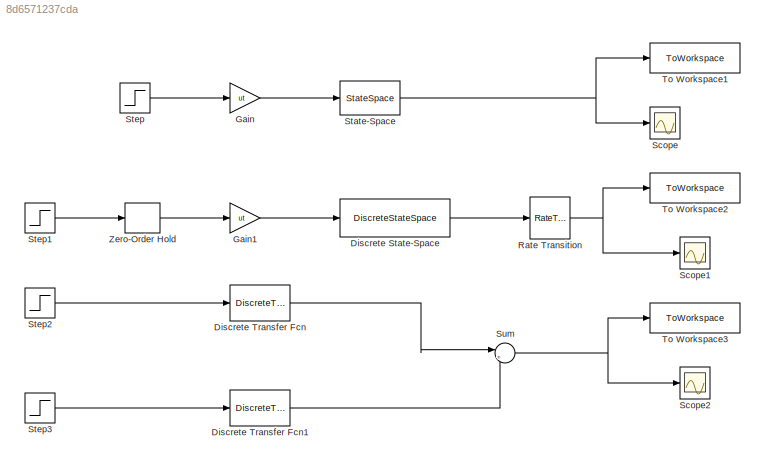
MODEL slx_8d6571237cda
KIND model
CONFIG AbsTol = auto
CONFIG EnableMultiTasking = off
CONFIG FixedStep = auto
CONFIG MaxStep = auto
CONFIG MinStep = auto
CONFIG RelTol = 1e-3
CONFIG SampleTimeConstraint = Unconstrained
CONFIG SolverName = VariableStepAuto
CONFIG StartTime = 0.0
CONFIG StopTime = 10.0
BLOCK [DiscreteStateSpace] Discrete State-Space
  A = Ad
  B = Bd
  C = Cd
  D = Dd
  SampleTime = h
BLOCK [DiscreteTransferFcn] Discrete Transfer Fcn
  Denominator = den1z
  InputPortMap = u0
  Numerator = num1z
  Ports = [1, 1]
  SampleTime = h
BLOCK [DiscreteTransferFcn] Discrete Transfer Fcn1
  Denominator = den2z
  InputPortMap = u0
  Numerator = num2z
  Ports = [1, 1]
  SampleTime = h
BLOCK [Gain] Gain
  Gain = ut
BLOCK [Gain] Gain1
  Gain = ut
BLOCK [RateTransition] Rate Transition
BLOCK [Scope] Scope
  Floating = off
  NumInputPorts = 1
  Ports = [1]
  ScopeSpecificationString = Simulink.scopes.TimeScopeBlockCfg('CurrentConfiguration', extmgr.ConfigurationSet(extmgr.Configuration('Core','General UI',true),extmgr.Configuration('Core','Source UI',true),extmgr.Configuration('Sources','WiredSimulink',true,'DataLoggingVariableName','ScopeData1'),extmgr.Configuration('Visuals','Time Domain',true,'SerializedDisplays',{struct('MinYLimReal','-1.27558','MaxYLimReal','1.4808','YLabe...<+1366ch>
BLOCK [Scope] Scope1
  Floating = off
  NumInputPorts = 1
  Ports = [1]
  ScopeSpecificationString = Simulink.scopes.TimeScopeBlockCfg('CurrentConfiguration', extmgr.ConfigurationSet(extmgr.Configuration('Core','General UI',true),extmgr.Configuration('Core','Source UI',true),extmgr.Configuration('Sources','WiredSimulink',true,'DataLoggingVariableName','ScopeData2'),extmgr.Configuration('Visuals','Time Domain',true,'SerializedDisplays',{struct('MinYLimReal','-1.27558','MaxYLimReal','1.4808','YLabe...<+1370ch>
BLOCK [Scope] Scope2
  Floating = off
  NumInputPorts = 1
  Ports = [1]
  ScopeSpecificationString = Simulink.scopes.TimeScopeBlockCfg('CurrentConfiguration', extmgr.ConfigurationSet(extmgr.Configuration('Core','General UI',true),extmgr.Configuration('Core','Source UI',true),extmgr.Configuration('Sources','WiredSimulink',true),extmgr.Configuration('Visuals','Time Domain',true,'SerializedDisplays',{struct('MinYLimReal','-1.34098','MaxYLimReal','2.07096','YLabelReal','','MinYLimMag','0.00000','MaxY...<+1323ch>
BLOCK [StateSpace] State-Space
  A = A
  B = B
  C = C
  D = D
  InitialCondition = 0
  Ports = [1, 1]
BLOCK [Step] Step
  SampleTime = 0
  Time = 0
BLOCK [Step] Step1
  SampleTime = 0
  Time = 0
BLOCK [Step] Step2
  SampleTime = 0
  Time = 0
BLOCK [Step] Step3
  After = -2
  SampleTime = 0
BLOCK [Sum] Sum
  Inputs = |++
  Ports = [2, 1]
BLOCK [ToWorkspace] To Workspace1
  FixptAsFi = on
  MaxDataPoints = inf
  Ports = [1]
  SampleTime = -1
  SaveFormat = Timeseries
  VariableName = simout
BLOCK [ToWorkspace] To Workspace2
  FixptAsFi = on
  MaxDataPoints = inf
  Ports = [1]
  SampleTime = -1
  SaveFormat = Timeseries
  VariableName = simout1
BLOCK [ToWorkspace] To Workspace3
  FixptAsFi = on
  MaxDataPoints = inf
  Ports = [1]
  SampleTime = -1
  SaveFormat = Timeseries
  VariableName = simout2
BLOCK [ZeroOrderHold] Zero-Order Hold
  SampleTime = h
LINE Discrete State-Space:1 -> Rate Transition:1
LINE Discrete Transfer Fcn1:1 -> Sum:2
LINE Discrete Transfer Fcn:1 -> Sum:1
LINE Gain1:1 -> Discrete State-Space:1
LINE Gain:1 -> State-Space:1
NET Rate Transition:1 -> Scope1:1, To Workspace2:1
NET State-Space:1 -> Scope:1, To Workspace1:1
LINE Step1:1 -> Zero-Order Hold:1
LINE Step2:1 -> Discrete Transfer Fcn:1
LINE Step3:1 -> Discrete Transfer Fcn1:1
LINE Step:1 -> Gain:1
NET Sum:1 -> Scope2:1, To Workspace3:1
LINE Zero-Order Hold:1 -> Gain1:1
note: NET lines group one-source signal fan-out (src -> all destinations, sorted); 1:1 wires keep LINE
